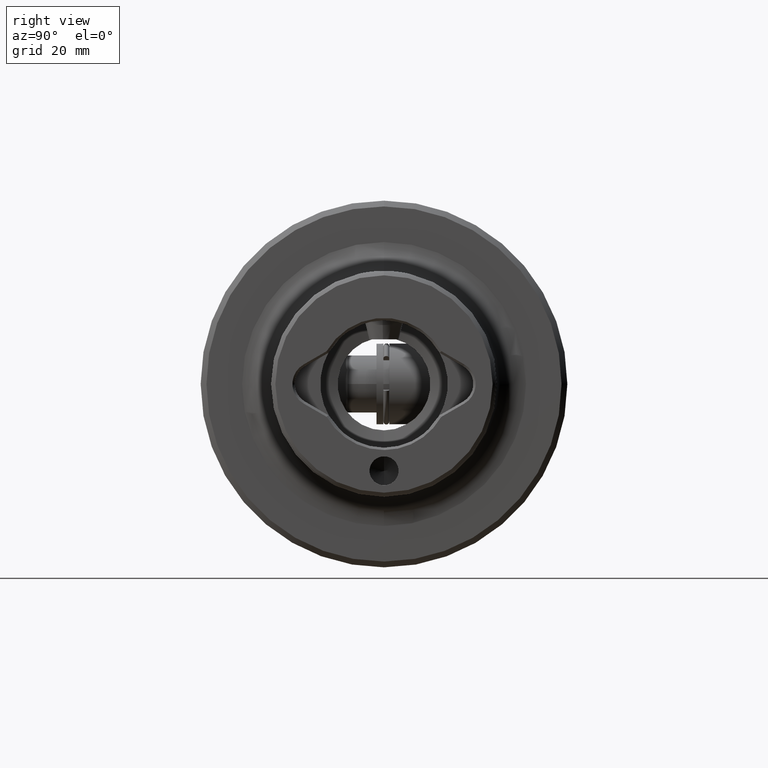
[diagram: clean part render]
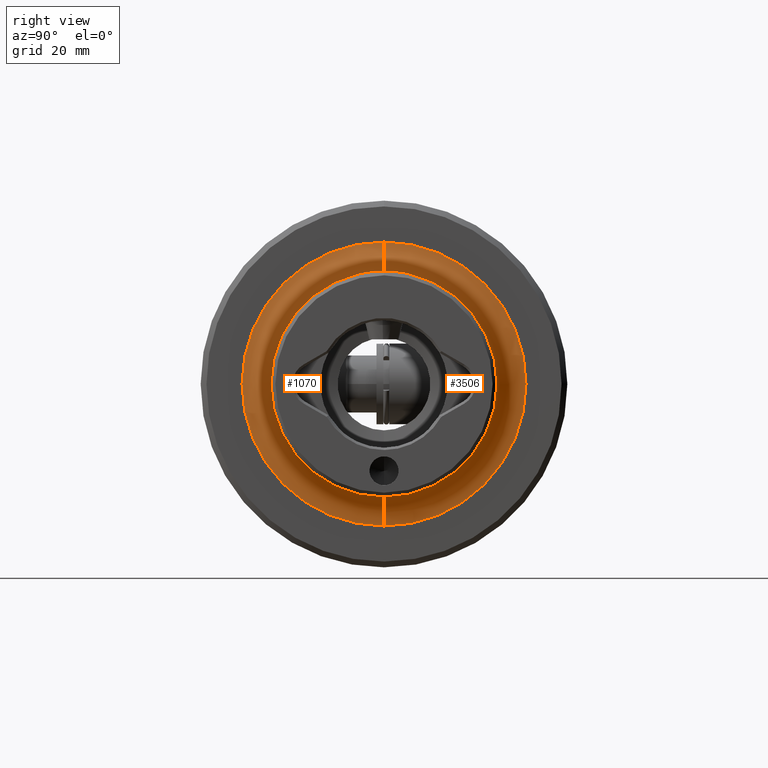
[diagram: same view with one multi-face feature highlighted, each face labeled with its STEP entity id]
A machine part, right view. The highlighted faces form ONE feature: a constant-radius fillet chain: 2 tangent blend faces with common blend radius 5 mm. The faces share edges in the B-rep.
Their STEP definitions:
[1] entity #1070 (Torus):
#46 = CARTESIAN_POINT ( 'NONE',  ( 57.00000000000000000, 0.0000000000000000000, 19.50000000000000000 ) ) ;
#147 = VERTEX_POINT ( 'NONE', #4007 ) ;
#382 = DIRECTION ( 'NONE',  ( 0.0000000000000000000, -1.224646799147353500E-016, 1.000000000000000000 ) ) ;
#523 = DIRECTION ( 'NONE',  ( 0.0000000000000000000, 0.0000000000000000000, 1.000000000000000000 ) ) ;
#742 = CARTESIAN_POINT ( 'NONE',  ( 57.00000000000000000, 2.388061258337338900E-015, -19.50000000000000000 ) ) ;
#809 = DIRECTION ( 'NONE',  ( 0.0000000000000000000, -1.000000000000000000, 0.0000000000000000000 ) ) ;
#1070 = ADVANCED_FACE ( 'NONE', ( #4839 ), #1761, .F. ) ;
#1329 = VERTEX_POINT ( 'NONE', #4249 ) ;
#1455 = EDGE_LOOP ( 'NONE', ( #4466, #2646, #3638, #3405 ) ) ;
#1608 = CARTESIAN_POINT ( 'NONE',  ( 52.00000000000000700, 0.0000000000000000000, 0.0000000000000000000 ) ) ;
#1707 = CARTESIAN_POINT ( 'NONE',  ( 57.00000000000000000, 0.0000000000000000000, 0.0000000000000000000 ) ) ;
#1744 = CARTESIAN_POINT ( 'NONE',  ( 57.00000000000000000, 0.0000000000000000000, 0.0000000000000000000 ) ) ;
#1761 = TOROIDAL_SURFACE ( 'NONE', #5057, 24.50000000000000000, 5.000000000000000000 ) ;
#1828 = CIRCLE ( 'NONE', #3753, 5.000000000000000900 ) ;
#1958 = AXIS2_PLACEMENT_3D ( 'NONE', #5177, #2776, #382 ) ;
#2019 = DIRECTION ( 'NONE',  ( 0.0000000000000000000, 0.0000000000000000000, 1.000000000000000000 ) ) ;
#2115 = DIRECTION ( 'NONE',  ( 0.0000000000000000000, 0.0000000000000000000, 1.000000000000000000 ) ) ;
#2209 = EDGE_CURVE ( 'NONE', #1329, #3007, #1828, .T. ) ;
#2317 = EDGE_CURVE ( 'NONE', #3007, #4908, #3597, .T. ) ;
#2519 = DIRECTION ( 'NONE',  ( -1.000000000000000000, -0.0000000000000000000, -0.0000000000000000000 ) ) ;
#2646 = ORIENTED_EDGE ( 'NONE', *, *, #2670, .T. ) ;
#2670 = EDGE_CURVE ( 'NONE', #147, #4908, #3276, .T. ) ;
#2776 = DIRECTION ( 'NONE',  ( -0.0000000000000000000, 1.000000000000000000, 1.224646799147353200E-016 ) ) ;
#2866 = CIRCLE ( 'NONE', #3643, 24.50000000000000000 ) ;
#3007 = VERTEX_POINT ( 'NONE', #46 ) ;
#3214 = CARTESIAN_POINT ( 'NONE',  ( 57.00000000000000000, 0.0000000000000000000, 24.50000000000000000 ) ) ;
#3276 = CIRCLE ( 'NONE', #1958, 5.000000000000000900 ) ;
#3313 = EDGE_CURVE ( 'NONE', #147, #1329, #2866, .T. ) ;
#3405 = ORIENTED_EDGE ( 'NONE', *, *, #2209, .F. ) ;
#3597 = CIRCLE ( 'NONE', #5104, 19.50000000000000000 ) ;
#3614 = DIRECTION ( 'NONE',  ( 0.0000000000000000000, 0.0000000000000000000, -1.000000000000000000 ) ) ;
#3638 = ORIENTED_EDGE ( 'NONE', *, *, #2317, .F. ) ;
#3643 = AXIS2_PLACEMENT_3D ( 'NONE', #1608, #4413, #2019 ) ;
#3753 = AXIS2_PLACEMENT_3D ( 'NONE', #3214, #809, #3614 ) ;
#4007 = CARTESIAN_POINT ( 'NONE',  ( 52.00000000000000700, 3.000384657911015500E-015, -24.50000000000000000 ) ) ;
#4249 = CARTESIAN_POINT ( 'NONE',  ( 52.00000000000000700, 0.0000000000000000000, 24.50000000000000000 ) ) ;
#4413 = DIRECTION ( 'NONE',  ( -1.000000000000000000, -0.0000000000000000000, -0.0000000000000000000 ) ) ;
#4466 = ORIENTED_EDGE ( 'NONE', *, *, #3313, .F. ) ;
#4516 = DIRECTION ( 'NONE',  ( 1.000000000000000000, 0.0000000000000000000, 0.0000000000000000000 ) ) ;
#4839 = FACE_OUTER_BOUND ( 'NONE', #1455, .T. ) ;
#4908 = VERTEX_POINT ( 'NONE', #742 ) ;
#5057 = AXIS2_PLACEMENT_3D ( 'NONE', #1744, #2519, #523 ) ;
#5104 = AXIS2_PLACEMENT_3D ( 'NONE', #1707, #4516, #2115 ) ;
#5177 = CARTESIAN_POINT ( 'NONE',  ( 57.00000000000000000, 3.000384657911015500E-015, -24.50000000000000000 ) ) ;
[2] entity #3506 (Torus):
#32 = DIRECTION ( 'NONE',  ( 0.0000000000000000000, 0.0000000000000000000, 1.000000000000000000 ) ) ;
#46 = CARTESIAN_POINT ( 'NONE',  ( 57.00000000000000000, 0.0000000000000000000, 19.50000000000000000 ) ) ;
#147 = VERTEX_POINT ( 'NONE', #4007 ) ;
#382 = DIRECTION ( 'NONE',  ( 0.0000000000000000000, -1.224646799147353500E-016, 1.000000000000000000 ) ) ;
#611 = AXIS2_PLACEMENT_3D ( 'NONE', #3574, #1182, #3972 ) ;
#742 = CARTESIAN_POINT ( 'NONE',  ( 57.00000000000000000, 2.388061258337338900E-015, -19.50000000000000000 ) ) ;
#798 = ORIENTED_EDGE ( 'NONE', *, *, #2670, .F. ) ;
#809 = DIRECTION ( 'NONE',  ( 0.0000000000000000000, -1.000000000000000000, 0.0000000000000000000 ) ) ;
#1014 = DIRECTION ( 'NONE',  ( 0.0000000000000000000, 0.0000000000000000000, 1.000000000000000000 ) ) ;
#1182 = DIRECTION ( 'NONE',  ( -1.000000000000000000, -0.0000000000000000000, -0.0000000000000000000 ) ) ;
#1329 = VERTEX_POINT ( 'NONE', #4249 ) ;
#1339 = CIRCLE ( 'NONE', #4957, 19.50000000000000000 ) ;
#1453 = EDGE_CURVE ( 'NONE', #4908, #3007, #1339, .T. ) ;
#1828 = CIRCLE ( 'NONE', #3753, 5.000000000000000900 ) ;
#1909 = EDGE_LOOP ( 'NONE', ( #798, #3194, #2944, #4922 ) ) ;
#1958 = AXIS2_PLACEMENT_3D ( 'NONE', #5177, #2776, #382 ) ;
#2209 = EDGE_CURVE ( 'NONE', #1329, #3007, #1828, .T. ) ;
#2430 = DIRECTION ( 'NONE',  ( 1.000000000000000000, 0.0000000000000000000, 0.0000000000000000000 ) ) ;
#2594 = CARTESIAN_POINT ( 'NONE',  ( 57.00000000000000000, 0.0000000000000000000, 0.0000000000000000000 ) ) ;
#2670 = EDGE_CURVE ( 'NONE', #147, #4908, #3276, .T. ) ;
#2776 = DIRECTION ( 'NONE',  ( -0.0000000000000000000, 1.000000000000000000, 1.224646799147353200E-016 ) ) ;
#2912 = TOROIDAL_SURFACE ( 'NONE', #3941, 24.50000000000000000, 5.000000000000000000 ) ;
#2944 = ORIENTED_EDGE ( 'NONE', *, *, #2209, .T. ) ;
#3007 = VERTEX_POINT ( 'NONE', #46 ) ;
#3194 = ORIENTED_EDGE ( 'NONE', *, *, #3738, .F. ) ;
#3214 = CARTESIAN_POINT ( 'NONE',  ( 57.00000000000000000, 0.0000000000000000000, 24.50000000000000000 ) ) ;
#3276 = CIRCLE ( 'NONE', #1958, 5.000000000000000900 ) ;
#3506 = ADVANCED_FACE ( 'NONE', ( #3727 ), #2912, .F. ) ;
#3574 = CARTESIAN_POINT ( 'NONE',  ( 52.00000000000000700, 0.0000000000000000000, 0.0000000000000000000 ) ) ;
#3614 = DIRECTION ( 'NONE',  ( 0.0000000000000000000, 0.0000000000000000000, -1.000000000000000000 ) ) ;
#3727 = FACE_OUTER_BOUND ( 'NONE', #1909, .T. ) ;
#3738 = EDGE_CURVE ( 'NONE', #1329, #147, #5112, .T. ) ;
#3753 = AXIS2_PLACEMENT_3D ( 'NONE', #3214, #809, #3614 ) ;
#3941 = AXIS2_PLACEMENT_3D ( 'NONE', #2594, #4992, #1014 ) ;
#3972 = DIRECTION ( 'NONE',  ( 0.0000000000000000000, 0.0000000000000000000, 1.000000000000000000 ) ) ;
#4007 = CARTESIAN_POINT ( 'NONE',  ( 52.00000000000000700, 3.000384657911015500E-015, -24.50000000000000000 ) ) ;
#4249 = CARTESIAN_POINT ( 'NONE',  ( 52.00000000000000700, 0.0000000000000000000, 24.50000000000000000 ) ) ;
#4818 = CARTESIAN_POINT ( 'NONE',  ( 57.00000000000000000, 0.0000000000000000000, 0.0000000000000000000 ) ) ;
#4908 = VERTEX_POINT ( 'NONE', #742 ) ;
#4922 = ORIENTED_EDGE ( 'NONE', *, *, #1453, .F. ) ;
#4957 = AXIS2_PLACEMENT_3D ( 'NONE', #4818, #2430, #32 ) ;
#4992 = DIRECTION ( 'NONE',  ( -1.000000000000000000, -0.0000000000000000000, -0.0000000000000000000 ) ) ;
#5112 = CIRCLE ( 'NONE', #611, 24.50000000000000000 ) ;
#5177 = CARTESIAN_POINT ( 'NONE',  ( 57.00000000000000000, 3.000384657911015500E-015, -24.50000000000000000 ) ) ;